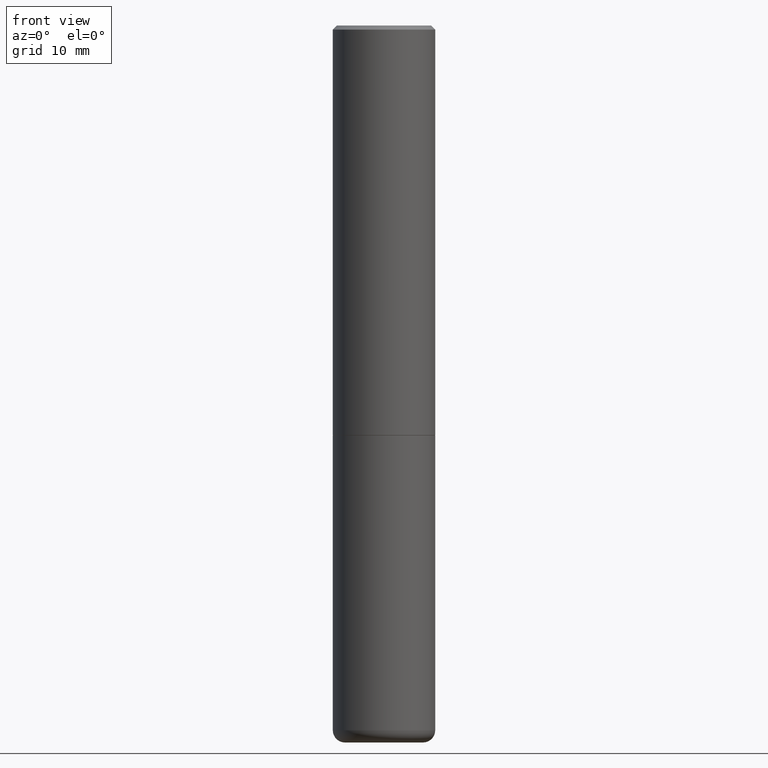
[diagram: clean part render]
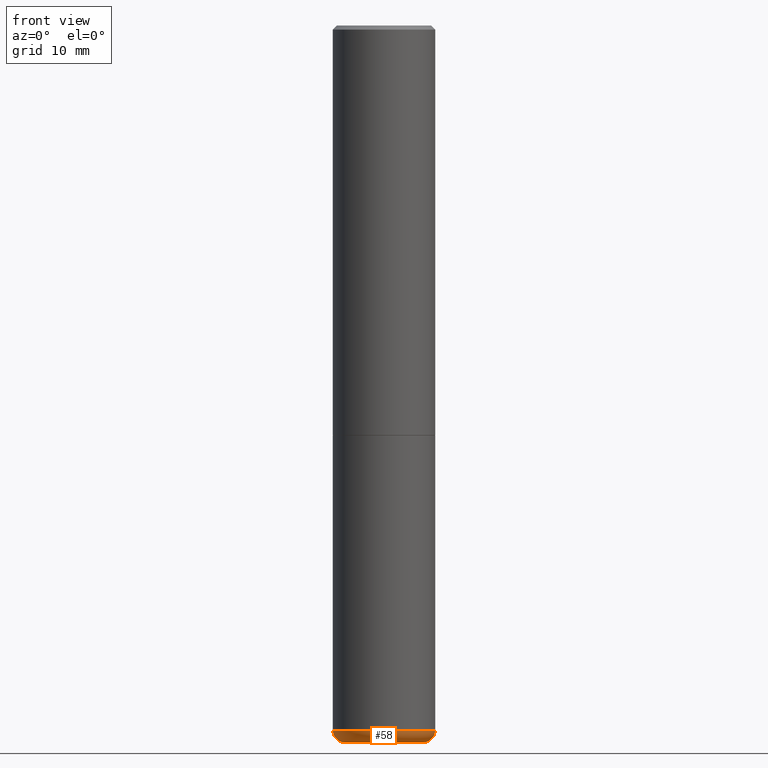
[diagram: same view with one face highlighted and labeled with its STEP entity id]
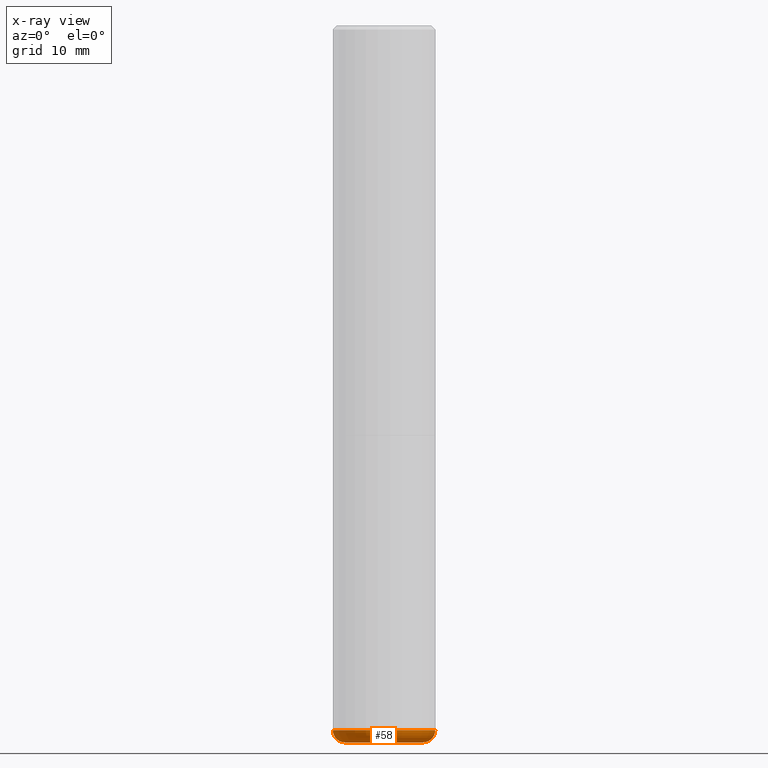
[diagram: x-ray of the same camera — body ghosted, the highlighted face saturated]
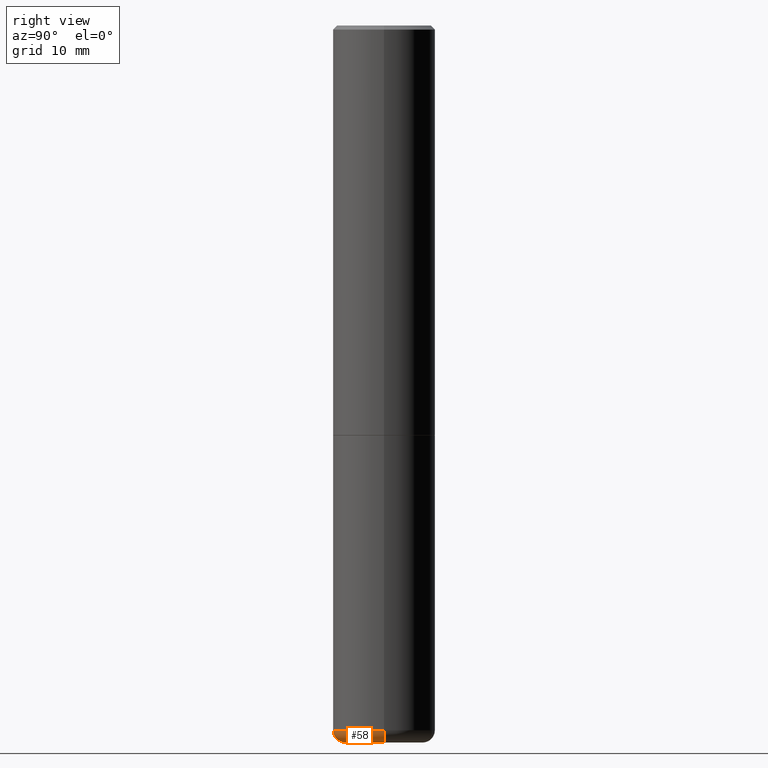
[diagram: same view with one face highlighted and labeled with its STEP entity id]
A machine part, front view. The second image highlights one B-rep face of the part: STEP entity #58.
The next image is the same camera in x-ray: the body ghosted, the highlighted face saturated — about 0% of this face is hidden behind the body in this view.
A second angle (right view) of the same face is appended — the face is thin or edge-on in the first view.
In plain terms, the highlighted toroidal blend (fillet) surface has major radius 4.826 mm and minor (blend) radius 1.524 mm.
Its self-contained STEP definition (entity closure, byte-faithful):
#2 = VERTEX_POINT ( 'NONE', #172 ) ;
#9 = FACE_OUTER_BOUND ( 'NONE', #35, .T. ) ;
#10 = VERTEX_POINT ( 'NONE', #368 ) ;
#35 = EDGE_LOOP ( 'NONE', ( #72, #133, #362, #169 ) ) ;
#54 = CARTESIAN_POINT ( 'NONE',  ( 8.412412693276869938E-29, -1.201069580562042103E-14, -3.439999999999999947 ) ) ;
#58 = ADVANCED_FACE ( 'NONE', ( #9 ), #100, .T. ) ;
#61 = AXIS2_PLACEMENT_3D ( 'NONE', #352, #178, #91 ) ;
#72 = ORIENTED_EDGE ( 'NONE', *, *, #89, .F. ) ;
#80 = CARTESIAN_POINT ( 'NONE',  ( 0.1899999999999999745, -1.333745871438081265E-14, -3.439999999999999947 ) ) ;
#89 = EDGE_CURVE ( 'NONE', #2, #299, #374, .T. ) ;
#91 = DIRECTION ( 'NONE',  ( 1.000000000000000000, -6.982962677686273021E-15, 0.000000000000000000 ) ) ;
#92 = CIRCLE ( 'NONE', #61, 0.1899999999999999745 ) ;
#100 = TOROIDAL_SURFACE ( 'NONE', #409, 0.1899999999999999745, 0.05999999999999995615 ) ;
#117 = DIRECTION ( 'NONE',  ( 1.000000000000000000, -6.982962677686274599E-15, 0.000000000000000000 ) ) ;
#127 = CARTESIAN_POINT ( 'NONE',  ( -0.1899999999999999745, -1.066066460767623105E-14, -3.439999999999999947 ) ) ;
#133 = ORIENTED_EDGE ( 'NONE', *, *, #267, .T. ) ;
#155 = AXIS2_PLACEMENT_3D ( 'NONE', #54, #241, #277 ) ;
#169 = ORIENTED_EDGE ( 'NONE', *, *, #243, .F. ) ;
#172 = CARTESIAN_POINT ( 'NONE',  ( -0.1899999999999999745, -1.055224622711349575E-14, -3.500000000000000000 ) ) ;
#178 = DIRECTION ( 'NONE',  ( -2.445468806185136597E-29, 3.491481338843145583E-15, 1.000000000000000000 ) ) ;
#179 = CARTESIAN_POINT ( 'NONE',  ( 0.2499999999999999722, -1.375643647504198770E-14, -3.439999999999999947 ) ) ;
#182 = DIRECTION ( 'NONE',  ( -6.982962677686266711E-15, -1.000000000000000000, 3.491481338843145583E-15 ) ) ;
#188 = EDGE_CURVE ( 'NONE', #10, #414, #296, .T. ) ;
#197 = DIRECTION ( 'NONE',  ( 1.000000000000000000, -6.982962677686265133E-15, 4.883557194083112340E-29 ) ) ;
#236 = DIRECTION ( 'NONE',  ( -2.445468806185136597E-29, 3.491481338843145583E-15, 1.000000000000000000 ) ) ;
#241 = DIRECTION ( 'NONE',  ( -2.445468806185136597E-29, 3.491481338843145583E-15, 1.000000000000000000 ) ) ;
#243 = EDGE_CURVE ( 'NONE', #299, #414, #245, .T. ) ;
#245 = CIRCLE ( 'NONE', #155, 0.2500000000000000000 ) ;
#259 = DIRECTION ( 'NONE',  ( -1.000000000000000000, 7.105427357600997914E-15, 0.000000000000000000 ) ) ;
#264 = DIRECTION ( 'NONE',  ( 7.105427357601001859E-15, 1.000000000000000000, -3.491481338843145583E-15 ) ) ;
#267 = EDGE_CURVE ( 'NONE', #2, #10, #92, .T. ) ;
#277 = DIRECTION ( 'NONE',  ( 1.000000000000000000, -6.982962677686270655E-15, 0.000000000000000000 ) ) ;
#296 = CIRCLE ( 'NONE', #354, 0.05999999999999994227 ) ;
#299 = VERTEX_POINT ( 'NONE', #345 ) ;
#339 = CARTESIAN_POINT ( 'NONE',  ( 8.412412693276869938E-29, -1.201069580562042103E-14, -3.439999999999999947 ) ) ;
#343 = AXIS2_PLACEMENT_3D ( 'NONE', #127, #264, #259 ) ;
#345 = CARTESIAN_POINT ( 'NONE',  ( -0.2499999999999999722, -1.023433896622016898E-14, -3.439999999999999947 ) ) ;
#352 = CARTESIAN_POINT ( 'NONE',  ( 8.559140821647976968E-29, -1.222018468595100934E-14, -3.500000000000000000 ) ) ;
#354 = AXIS2_PLACEMENT_3D ( 'NONE', #80, #182, #117 ) ;
#362 = ORIENTED_EDGE ( 'NONE', *, *, #188, .T. ) ;
#368 = CARTESIAN_POINT ( 'NONE',  ( 0.1899999999999999745, -1.354694759471140096E-14, -3.500000000000000000 ) ) ;
#374 = CIRCLE ( 'NONE', #343, 0.05999999999999994227 ) ;
#409 = AXIS2_PLACEMENT_3D ( 'NONE', #339, #236, #197 ) ;
#414 = VERTEX_POINT ( 'NONE', #179 ) ;